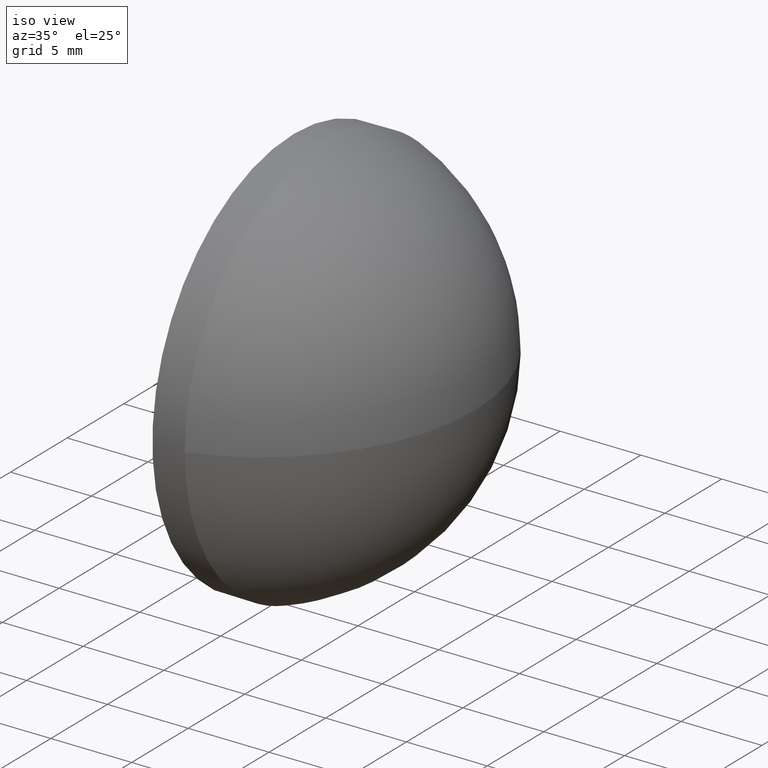
[diagram: clean part render]
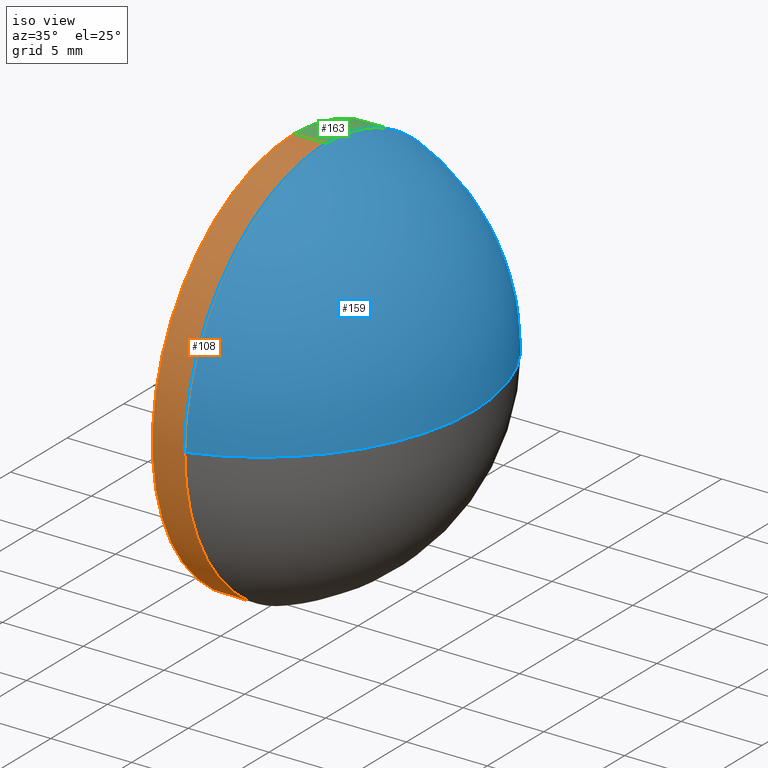
[diagram: same view with three faces highlighted in distinct colors, each labeled with its STEP entity id]
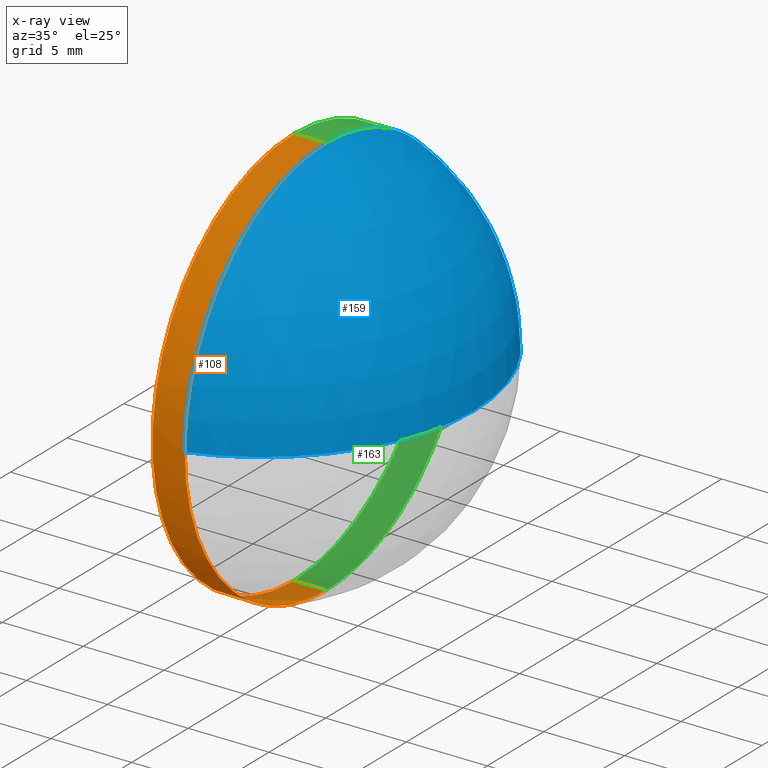
[diagram: x-ray of the same camera — body ghosted, the three highlighted faces saturated]
A machine part, iso view with three faces highlighted in distinct colors.
The next image is the same camera in x-ray (body ghosted, the three faces saturated) — at least one of them is partly hidden behind the body in this view.
Their STEP definitions:

[orange] entity #108 — the highlighted cylindrical surface (partial cylindrical patch) has radius 12.5 mm, axis along (-1, -0, -0).
#1 = AXIS2_PLACEMENT_3D ( 'NONE', #134, #156, #95 ) ;
#3 = DIRECTION ( 'NONE',  ( -1.000000000000000000, -0.0000000000000000000, -0.0000000000000000000 ) ) ;
#6 = CARTESIAN_POINT ( 'NONE',  ( 417.4229375998270900, 66.57798510397458400, 12.49999999999999600 ) ) ;
#7 = ORIENTED_EDGE ( 'NONE', *, *, #9, .F. ) ;
#9 = EDGE_CURVE ( 'NONE', #125, #132, #38, .T. ) ;
#13 = DIRECTION ( 'NONE',  ( -1.000000000000000000, -0.0000000000000000000, -0.0000000000000000000 ) ) ;
#14 = VECTOR ( 'NONE', #75, 1000.000000000000000 ) ;
#23 = FACE_OUTER_BOUND ( 'NONE', #33, .T. ) ;
#24 = CARTESIAN_POINT ( 'NONE',  ( 419.9278866193999400, 66.57798510397458400, -12.49999999999999600 ) ) ;
#28 = AXIS2_PLACEMENT_3D ( 'NONE', #149, #54, #167 ) ;
#30 = CIRCLE ( 'NONE', #28, 12.49999999999999600 ) ;
#33 = EDGE_LOOP ( 'NONE', ( #7, #133, #105, #128, #139 ) ) ;
#34 = EDGE_CURVE ( 'NONE', #137, #169, #51, .T. ) ;
#38 = LINE ( 'NONE', #143, #14 ) ;
#51 = CIRCLE ( 'NONE', #58, 12.49999999999999600 ) ;
#54 = DIRECTION ( 'NONE',  ( -1.000000000000000000, -0.0000000000000000000, -0.0000000000000000000 ) ) ;
#55 = CYLINDRICAL_SURFACE ( 'NONE', #1, 12.49999999999999600 ) ;
#58 = AXIS2_PLACEMENT_3D ( 'NONE', #77, #3, #106 ) ;
#75 = DIRECTION ( 'NONE',  ( -1.000000000000000000, -0.0000000000000000000, -0.0000000000000000000 ) ) ;
#77 = CARTESIAN_POINT ( 'NONE',  ( 421.9278866193999400, 66.57798510397458400, 0.0000000000000000000 ) ) ;
#81 = CARTESIAN_POINT ( 'NONE',  ( 421.9278866193999400, 66.57798510397458400, -12.49999999999999600 ) ) ;
#95 = DIRECTION ( 'NONE',  ( 0.0000000000000000000, 0.0000000000000000000, 1.000000000000000000 ) ) ;
#105 = ORIENTED_EDGE ( 'NONE', *, *, #34, .T. ) ;
#106 = DIRECTION ( 'NONE',  ( 0.0000000000000000000, 0.0000000000000000000, 1.000000000000000000 ) ) ;
#108 = ADVANCED_FACE ( 'NONE', ( #23 ), #55, .T. ) ;
#113 = CARTESIAN_POINT ( 'NONE',  ( 421.9278866193999400, 66.57798510397458400, 12.49999999999999600 ) ) ;
#114 = DIRECTION ( 'NONE',  ( 0.0000000000000000000, 0.0000000000000000000, 1.000000000000000000 ) ) ;
#115 = VERTEX_POINT ( 'NONE', #178 ) ;
#125 = VERTEX_POINT ( 'NONE', #81 ) ;
#128 = ORIENTED_EDGE ( 'NONE', *, *, #129, .T. ) ;
#129 = EDGE_CURVE ( 'NONE', #169, #115, #131, .T. ) ;
#131 = LINE ( 'NONE', #6, #184 ) ;
#132 = VERTEX_POINT ( 'NONE', #24 ) ;
#133 = ORIENTED_EDGE ( 'NONE', *, *, #136, .T. ) ;
#134 = CARTESIAN_POINT ( 'NONE',  ( 417.4229375998270900, 66.57798510397458400, 0.0000000000000000000 ) ) ;
#136 = EDGE_CURVE ( 'NONE', #125, #137, #168, .T. ) ;
#137 = VERTEX_POINT ( 'NONE', #185 ) ;
#139 = ORIENTED_EDGE ( 'NONE', *, *, #146, .F. ) ;
#142 = AXIS2_PLACEMENT_3D ( 'NONE', #182, #183, #114 ) ;
#143 = CARTESIAN_POINT ( 'NONE',  ( 417.4229375998270900, 66.57798510397458400, -12.49999999999999600 ) ) ;
#146 = EDGE_CURVE ( 'NONE', #132, #115, #30, .T. ) ;
#149 = CARTESIAN_POINT ( 'NONE',  ( 419.9278866193999400, 66.57798510397458400, 0.0000000000000000000 ) ) ;
#156 = DIRECTION ( 'NONE',  ( -1.000000000000000000, -0.0000000000000000000, -0.0000000000000000000 ) ) ;
#167 = DIRECTION ( 'NONE',  ( 0.0000000000000000000, 0.0000000000000000000, 1.000000000000000000 ) ) ;
#168 = CIRCLE ( 'NONE', #142, 12.49999999999999600 ) ;
#169 = VERTEX_POINT ( 'NONE', #113 ) ;
#178 = CARTESIAN_POINT ( 'NONE',  ( 419.9278866193999400, 66.57798510397458400, 12.49999999999999600 ) ) ;
#182 = CARTESIAN_POINT ( 'NONE',  ( 421.9278866193999400, 66.57798510397458400, 0.0000000000000000000 ) ) ;
#183 = DIRECTION ( 'NONE',  ( -1.000000000000000000, -0.0000000000000000000, -0.0000000000000000000 ) ) ;
#184 = VECTOR ( 'NONE', #13, 1000.000000000000000 ) ;
#185 = CARTESIAN_POINT ( 'NONE',  ( 421.9278866193999400, 54.07798510397460500, 0.0000000000000000000 ) ) ;

[blue] entity #159 — the highlighted spherical surface has radius 13.1089 mm.
#3 = DIRECTION ( 'NONE',  ( -1.000000000000000000, -0.0000000000000000000, -0.0000000000000000000 ) ) ;
#4 = AXIS2_PLACEMENT_3D ( 'NONE', #70, #111, #15 ) ;
#15 = DIRECTION ( 'NONE',  ( 0.0000000000000000000, -1.000000000000000000, 0.0000000000000000000 ) ) ;
#25 = DIRECTION ( 'NONE',  ( 0.0000000000000000000, -1.000000000000000000, -1.224646799147353700E-016 ) ) ;
#27 = VERTEX_POINT ( 'NONE', #176 ) ;
#34 = EDGE_CURVE ( 'NONE', #137, #169, #51, .T. ) ;
#35 = DIRECTION ( 'NONE',  ( -1.000000000000000000, 0.0000000000000000000, 0.0000000000000000000 ) ) ;
#44 = SPHERICAL_SURFACE ( 'NONE', #4, 13.10893013100434100 ) ;
#45 = ORIENTED_EDGE ( 'NONE', *, *, #154, .T. ) ;
#47 = CARTESIAN_POINT ( 'NONE',  ( 431.0878866193999700, 66.57798510397459800, 0.0000000000000000000 ) ) ;
#50 = DIRECTION ( 'NONE',  ( 0.0000000000000000000, 0.0000000000000000000, -1.000000000000000000 ) ) ;
#51 = CIRCLE ( 'NONE', #58, 12.49999999999999600 ) ;
#58 = AXIS2_PLACEMENT_3D ( 'NONE', #77, #3, #106 ) ;
#60 = CIRCLE ( 'NONE', #79, 13.10893013100433700 ) ;
#61 = ORIENTED_EDGE ( 'NONE', *, *, #34, .F. ) ;
#64 = CIRCLE ( 'NONE', #173, 12.49999999999999600 ) ;
#70 = CARTESIAN_POINT ( 'NONE',  ( 417.9789564883956200, 66.57798510397459800, 0.0000000000000000000 ) ) ;
#77 = CARTESIAN_POINT ( 'NONE',  ( 421.9278866193999400, 66.57798510397458400, 0.0000000000000000000 ) ) ;
#79 = AXIS2_PLACEMENT_3D ( 'NONE', #124, #50, #35 ) ;
#84 = DIRECTION ( 'NONE',  ( 0.0000000000000000000, -1.224646799147353200E-016, 1.000000000000000000 ) ) ;
#86 = CARTESIAN_POINT ( 'NONE',  ( 417.9789564883956200, 66.57798510397459800, 0.0000000000000000000 ) ) ;
#106 = DIRECTION ( 'NONE',  ( 0.0000000000000000000, 0.0000000000000000000, 1.000000000000000000 ) ) ;
#109 = EDGE_CURVE ( 'NONE', #119, #137, #60, .T. ) ;
#111 = DIRECTION ( 'NONE',  ( 0.0000000000000000000, 0.0000000000000000000, 1.000000000000000000 ) ) ;
#112 = CARTESIAN_POINT ( 'NONE',  ( 421.9278866193999400, 66.57798510397458400, 0.0000000000000000000 ) ) ;
#113 = CARTESIAN_POINT ( 'NONE',  ( 421.9278866193999400, 66.57798510397458400, 12.49999999999999600 ) ) ;
#119 = VERTEX_POINT ( 'NONE', #47 ) ;
#123 = AXIS2_PLACEMENT_3D ( 'NONE', #86, #84, #25 ) ;
#124 = CARTESIAN_POINT ( 'NONE',  ( 417.9789564883956200, 66.57798510397459800, 0.0000000000000000000 ) ) ;
#130 = ORIENTED_EDGE ( 'NONE', *, *, #109, .F. ) ;
#137 = VERTEX_POINT ( 'NONE', #185 ) ;
#138 = DIRECTION ( 'NONE',  ( 0.0000000000000000000, 0.0000000000000000000, 1.000000000000000000 ) ) ;
#141 = ORIENTED_EDGE ( 'NONE', *, *, #157, .F. ) ;
#154 = EDGE_CURVE ( 'NONE', #119, #27, #175, .T. ) ;
#157 = EDGE_CURVE ( 'NONE', #169, #27, #64, .T. ) ;
#159 = ADVANCED_FACE ( 'NONE', ( #170 ), #44, .T. ) ;
#162 = EDGE_LOOP ( 'NONE', ( #130, #45, #141, #61 ) ) ;
#169 = VERTEX_POINT ( 'NONE', #113 ) ;
#170 = FACE_OUTER_BOUND ( 'NONE', #162, .T. ) ;
#172 = DIRECTION ( 'NONE',  ( -1.000000000000000000, -0.0000000000000000000, -0.0000000000000000000 ) ) ;
#173 = AXIS2_PLACEMENT_3D ( 'NONE', #112, #172, #138 ) ;
#175 = CIRCLE ( 'NONE', #123, 13.10893013100433700 ) ;
#176 = CARTESIAN_POINT ( 'NONE',  ( 421.9278866193999400, 79.07798510397458400, 1.530808498934189500E-015 ) ) ;
#185 = CARTESIAN_POINT ( 'NONE',  ( 421.9278866193999400, 54.07798510397460500, 0.0000000000000000000 ) ) ;

[green] entity #163 — the highlighted cylindrical surface (partial cylindrical patch) has radius 12.5 mm, axis along (-1, -0, -0).
#5 = CARTESIAN_POINT ( 'NONE',  ( 419.9278866193999400, 66.57798510397458400, 0.0000000000000000000 ) ) ;
#6 = CARTESIAN_POINT ( 'NONE',  ( 417.4229375998270900, 66.57798510397458400, 12.49999999999999600 ) ) ;
#9 = EDGE_CURVE ( 'NONE', #125, #132, #38, .T. ) ;
#13 = DIRECTION ( 'NONE',  ( -1.000000000000000000, -0.0000000000000000000, -0.0000000000000000000 ) ) ;
#14 = VECTOR ( 'NONE', #75, 1000.000000000000000 ) ;
#17 = AXIS2_PLACEMENT_3D ( 'NONE', #145, #19, #160 ) ;
#18 = ORIENTED_EDGE ( 'NONE', *, *, #9, .T. ) ;
#19 = DIRECTION ( 'NONE',  ( -1.000000000000000000, -0.0000000000000000000, -0.0000000000000000000 ) ) ;
#24 = CARTESIAN_POINT ( 'NONE',  ( 419.9278866193999400, 66.57798510397458400, -12.49999999999999600 ) ) ;
#27 = VERTEX_POINT ( 'NONE', #176 ) ;
#32 = AXIS2_PLACEMENT_3D ( 'NONE', #127, #39, #83 ) ;
#38 = LINE ( 'NONE', #143, #14 ) ;
#39 = DIRECTION ( 'NONE',  ( -1.000000000000000000, -0.0000000000000000000, -0.0000000000000000000 ) ) ;
#46 = DIRECTION ( 'NONE',  ( -1.000000000000000000, -0.0000000000000000000, -0.0000000000000000000 ) ) ;
#49 = EDGE_CURVE ( 'NONE', #115, #132, #56, .T. ) ;
#56 = CIRCLE ( 'NONE', #62, 12.49999999999999600 ) ;
#62 = AXIS2_PLACEMENT_3D ( 'NONE', #5, #46, #144 ) ;
#63 = ORIENTED_EDGE ( 'NONE', *, *, #157, .T. ) ;
#64 = CIRCLE ( 'NONE', #173, 12.49999999999999600 ) ;
#75 = DIRECTION ( 'NONE',  ( -1.000000000000000000, -0.0000000000000000000, -0.0000000000000000000 ) ) ;
#78 = ORIENTED_EDGE ( 'NONE', *, *, #87, .T. ) ;
#81 = CARTESIAN_POINT ( 'NONE',  ( 421.9278866193999400, 66.57798510397458400, -12.49999999999999600 ) ) ;
#83 = DIRECTION ( 'NONE',  ( 0.0000000000000000000, 0.0000000000000000000, 1.000000000000000000 ) ) ;
#87 = EDGE_CURVE ( 'NONE', #27, #125, #100, .T. ) ;
#88 = FACE_OUTER_BOUND ( 'NONE', #165, .T. ) ;
#100 = CIRCLE ( 'NONE', #17, 12.49999999999999600 ) ;
#112 = CARTESIAN_POINT ( 'NONE',  ( 421.9278866193999400, 66.57798510397458400, 0.0000000000000000000 ) ) ;
#113 = CARTESIAN_POINT ( 'NONE',  ( 421.9278866193999400, 66.57798510397458400, 12.49999999999999600 ) ) ;
#115 = VERTEX_POINT ( 'NONE', #178 ) ;
#125 = VERTEX_POINT ( 'NONE', #81 ) ;
#127 = CARTESIAN_POINT ( 'NONE',  ( 417.4229375998270900, 66.57798510397458400, 0.0000000000000000000 ) ) ;
#129 = EDGE_CURVE ( 'NONE', #169, #115, #131, .T. ) ;
#131 = LINE ( 'NONE', #6, #184 ) ;
#132 = VERTEX_POINT ( 'NONE', #24 ) ;
#138 = DIRECTION ( 'NONE',  ( 0.0000000000000000000, 0.0000000000000000000, 1.000000000000000000 ) ) ;
#140 = CYLINDRICAL_SURFACE ( 'NONE', #32, 12.49999999999999600 ) ;
#143 = CARTESIAN_POINT ( 'NONE',  ( 417.4229375998270900, 66.57798510397458400, -12.49999999999999600 ) ) ;
#144 = DIRECTION ( 'NONE',  ( 0.0000000000000000000, 0.0000000000000000000, 1.000000000000000000 ) ) ;
#145 = CARTESIAN_POINT ( 'NONE',  ( 421.9278866193999400, 66.57798510397458400, 0.0000000000000000000 ) ) ;
#157 = EDGE_CURVE ( 'NONE', #169, #27, #64, .T. ) ;
#160 = DIRECTION ( 'NONE',  ( 0.0000000000000000000, 0.0000000000000000000, 1.000000000000000000 ) ) ;
#163 = ADVANCED_FACE ( 'NONE', ( #88 ), #140, .T. ) ;
#165 = EDGE_LOOP ( 'NONE', ( #78, #18, #186, #181, #63 ) ) ;
#169 = VERTEX_POINT ( 'NONE', #113 ) ;
#172 = DIRECTION ( 'NONE',  ( -1.000000000000000000, -0.0000000000000000000, -0.0000000000000000000 ) ) ;
#173 = AXIS2_PLACEMENT_3D ( 'NONE', #112, #172, #138 ) ;
#176 = CARTESIAN_POINT ( 'NONE',  ( 421.9278866193999400, 79.07798510397458400, 1.530808498934189500E-015 ) ) ;
#178 = CARTESIAN_POINT ( 'NONE',  ( 419.9278866193999400, 66.57798510397458400, 12.49999999999999600 ) ) ;
#181 = ORIENTED_EDGE ( 'NONE', *, *, #129, .F. ) ;
#184 = VECTOR ( 'NONE', #13, 1000.000000000000000 ) ;
#186 = ORIENTED_EDGE ( 'NONE', *, *, #49, .F. ) ;